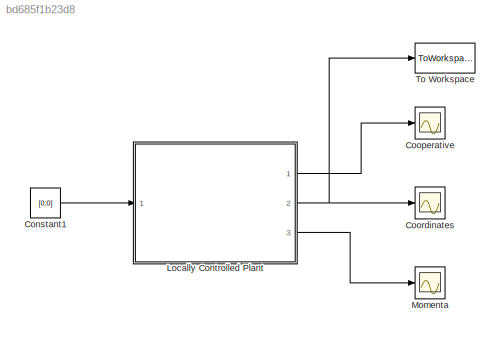
MODEL slx_bd685f1b23d8
KIND model
CONFIG AbsTol = auto
CONFIG EnableMultiTasking = off
CONFIG FixedStep = auto
CONFIG MaxStep = auto
CONFIG MinStep = auto
CONFIG RelTol = 1e-3
CONFIG SampleTimeConstraint = Unconstrained
CONFIG Solver = VariableStepAuto
CONFIG SolverName = VariableStepAuto
CONFIG StartTime = 0.0
CONFIG StopTime = 10.0
BLOCK [Constant] Constant1
  Value = [0;0]
BLOCK [Scope] Cooperative
  NumInputPorts = 1
  Ports = [1]
  ScopeSpecificationString = Simulink.scopes.TimeScopeBlockCfg('CurrentConfiguration', extmgr.ConfigurationSet(extmgr.Configuration('Core','General UI',true),extmgr.Configuration('Core','Source UI',true),extmgr.Configuration('Sources','WiredSimulink',true,'DataLoggingVariableName','ScopeData1'),extmgr.Configuration('Visuals','Time Domain',true,'SerializedDisplays',{struct('MinYLimReal','2.7501','MaxYLimReal','5.24999','YLabel...<+1379ch>
BLOCK [Scope] Coordinates
  NumInputPorts = 1
  Ports = [1]
  ScopeSpecificationString = Simulink.scopes.TimeScopeBlockCfg('CurrentConfiguration', extmgr.ConfigurationSet(extmgr.Configuration('Core','General UI',true),extmgr.Configuration('Core','Source UI',true),extmgr.Configuration('Sources','WiredSimulink',true),extmgr.Configuration('Visuals','Time Domain',true,'SerializedDisplays',{struct('MinYLimReal','-2.22982','MaxYLimReal','5.80331','YLabelReal','','MinYLimMag','0.00000','MaxY...<+1405ch>
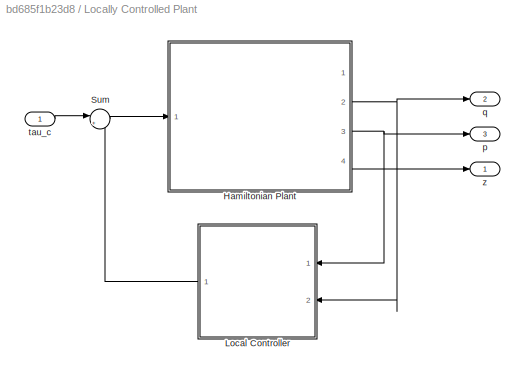
BLOCK [SubSystem] Locally Controlled Plant
  Ports = [1, 3]
  RequestExecContextInheritance = off
  Variant = off
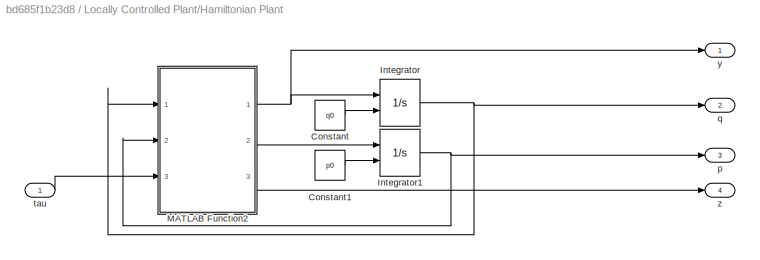
BLOCK [SubSystem] Locally Controlled Plant/Hamiltonian Plant
  Ports = [1, 4]
  RequestExecContextInheritance = off
  Variant = off
BLOCK [Constant] Locally Controlled Plant/Hamiltonian Plant/Constant
  Value = q0
BLOCK [Constant] Locally Controlled Plant/Hamiltonian Plant/Constant1
  Value = p0
BLOCK [Integrator] Locally Controlled Plant/Hamiltonian Plant/Integrator
  InitialCondition = q01
  InitialConditionSource = external
  Ports = [2, 1]
BLOCK [Integrator] Locally Controlled Plant/Hamiltonian Plant/Integrator1
  InitialCondition = p02
  InitialConditionSource = external
  Ports = [2, 1]
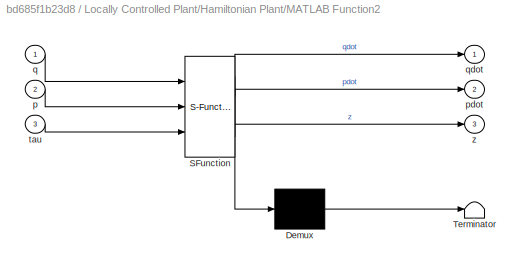
BLOCK [SubSystem] Locally Controlled Plant/Hamiltonian Plant/MATLAB Function2
  ErrorFcn = Stateflow.Translate.translate
  PermitHierarchicalResolution = ExplicitOnly
  Ports = [3, 3]
  RequestExecContextInheritance = off
  SFBlockType = MATLAB Function
  TreatAsAtomicUnit = on
  Variant = off
BLOCK [Demux] Locally Controlled Plant/Hamiltonian Plant/MATLAB Function2/ Demux 
  Outputs = 1
  Ports = [1, 1]
BLOCK [S-Function] Locally Controlled Plant/Hamiltonian Plant/MATLAB Function2/ SFunction 
  EnableBusSupport = on
  FunctionName = sf_sfun
  PortCounts = [3 4]
  Ports = [3, 4]
  SFcnIsStateOwnerBlock = off
  SFunctionDeploymentMode = off
  Tag = Stateflow S-Function Model 3
BLOCK [Terminator] Locally Controlled Plant/Hamiltonian Plant/MATLAB Function2/ Terminator 
BLOCK [Inport] Locally Controlled Plant/Hamiltonian Plant/MATLAB Function2/p
  IconDisplay = Port number
  Port = 2
BLOCK [Outport] Locally Controlled Plant/Hamiltonian Plant/MATLAB Function2/pdot
  IconDisplay = Port number
  Port = 2
BLOCK [Inport] Locally Controlled Plant/Hamiltonian Plant/MATLAB Function2/q
  IconDisplay = Port number
BLOCK [Outport] Locally Controlled Plant/Hamiltonian Plant/MATLAB Function2/qdot
  IconDisplay = Port number
BLOCK [Inport] Locally Controlled Plant/Hamiltonian Plant/MATLAB Function2/tau
  IconDisplay = Port number
  Port = 3
BLOCK [Outport] Locally Controlled Plant/Hamiltonian Plant/MATLAB Function2/z
  IconDisplay = Port number
  Port = 3
BLOCK [Outport] Locally Controlled Plant/Hamiltonian Plant/p
  IconDisplay = Port number
  Port = 3
BLOCK [Outport] Locally Controlled Plant/Hamiltonian Plant/q
  IconDisplay = Port number
  Port = 2
BLOCK [Inport] Locally Controlled Plant/Hamiltonian Plant/tau
  IconDisplay = Port number
BLOCK [Outport] Locally Controlled Plant/Hamiltonian Plant/y
  IconDisplay = Port number
BLOCK [Outport] Locally Controlled Plant/Hamiltonian Plant/z
  IconDisplay = Port number
  Port = 4
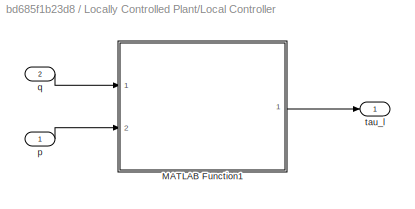
BLOCK [SubSystem] Locally Controlled Plant/Local Controller
  Ports = [2, 1]
  RequestExecContextInheritance = off
  Variant = off
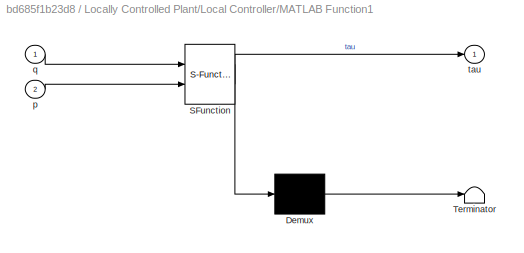
BLOCK [SubSystem] Locally Controlled Plant/Local Controller/MATLAB Function1
  ErrorFcn = Stateflow.Translate.translate
  PermitHierarchicalResolution = ExplicitOnly
  Ports = [2, 1]
  RequestExecContextInheritance = off
  SFBlockType = MATLAB Function
  TreatAsAtomicUnit = on
  Variant = off
BLOCK [Demux] Locally Controlled Plant/Local Controller/MATLAB Function1/ Demux 
  Outputs = 1
  Ports = [1, 1]
BLOCK [S-Function] Locally Controlled Plant/Local Controller/MATLAB Function1/ SFunction 
  EnableBusSupport = on
  FunctionName = sf_sfun
  PortCounts = [2 2]
  Ports = [2, 2]
  SFcnIsStateOwnerBlock = off
  SFunctionDeploymentMode = off
  Tag = Stateflow S-Function Model 4
BLOCK [Terminator] Locally Controlled Plant/Local Controller/MATLAB Function1/ Terminator 
BLOCK [Inport] Locally Controlled Plant/Local Controller/MATLAB Function1/p
  IconDisplay = Port number
  Port = 2
BLOCK [Inport] Locally Controlled Plant/Local Controller/MATLAB Function1/q
  IconDisplay = Port number
BLOCK [Outport] Locally Controlled Plant/Local Controller/MATLAB Function1/tau
  IconDisplay = Port number
BLOCK [Inport] Locally Controlled Plant/Local Controller/p
  IconDisplay = Port number
BLOCK [Inport] Locally Controlled Plant/Local Controller/q
  IconDisplay = Port number
  Port = 2
BLOCK [Outport] Locally Controlled Plant/Local Controller/tau_l
  IconDisplay = Port number
BLOCK [Sum] Locally Controlled Plant/Sum
  IconShape = round
  InputSameDT = off
  Inputs = |++
  OutDataTypeStr = Inherit: Inherit via internal rule
  Ports = [2, 1]
  SaturateOnIntegerOverflow = off
BLOCK [Outport] Locally Controlled Plant/p
  IconDisplay = Port number
  Port = 3
BLOCK [Outport] Locally Controlled Plant/q
  IconDisplay = Port number
  Port = 2
BLOCK [Inport] Locally Controlled Plant/tau_c
  IconDisplay = Port number
BLOCK [Outport] Locally Controlled Plant/z
  IconDisplay = Port number
BLOCK [Scope] Momenta
  NumInputPorts = 1
  Ports = [1]
  ScopeSpecificationString = Simulink.scopes.TimeScopeBlockCfg('CurrentConfiguration', extmgr.ConfigurationSet(extmgr.Configuration('Core','General UI',true),extmgr.Configuration('Core','Source UI',true),extmgr.Configuration('Sources','WiredSimulink',true,'DataLoggingVariableName','ScopeData1'),extmgr.Configuration('Visuals','Time Domain',true,'SerializedDisplays',{struct('MinYLimReal','-4.87607','MaxYLimReal','1.96026','YLab...<+1444ch>
BLOCK [ToWorkspace] To Workspace
  FixptAsFi = on
  MaxDataPoints = inf
  Ports = [1]
  SampleTime = -1
  Save2DSignal = 3-D array (concatenate along third dimension)
  SaveFormat = Timeseries
  VariableName = q
LINE Constant1:1 -> Locally Controlled Plant:1
LINE Locally Controlled Plant/Hamiltonian Plant/Constant1:1 -> Locally Controlled Plant/Hamiltonian Plant/Integrator1:2
LINE Locally Controlled Plant/Hamiltonian Plant/Constant:1 -> Locally Controlled Plant/Hamiltonian Plant/Integrator:2
NET Locally Controlled Plant/Hamiltonian Plant/Integrator1:1 -> Locally Controlled Plant/Hamiltonian Plant/MATLAB Function2:2, Locally Controlled Plant/Hamiltonian Plant/p:1
NET Locally Controlled Plant/Hamiltonian Plant/Integrator:1 -> Locally Controlled Plant/Hamiltonian Plant/MATLAB Function2:1, Locally Controlled Plant/Hamiltonian Plant/q:1
NET Locally Controlled Plant/Hamiltonian Plant/MATLAB Function2:1 -> Locally Controlled Plant/Hamiltonian Plant/Integrator:1, Locally Controlled Plant/Hamiltonian Plant/y:1
LINE Locally Controlled Plant/Hamiltonian Plant/MATLAB Function2:2 -> Locally Controlled Plant/Hamiltonian Plant/Integrator1:1
LINE Locally Controlled Plant/Hamiltonian Plant/MATLAB Function2:3 -> Locally Controlled Plant/Hamiltonian Plant/z:1
LINE Locally Controlled Plant/Hamiltonian Plant/tau:1 -> Locally Controlled Plant/Hamiltonian Plant/MATLAB Function2:3
NET Locally Controlled Plant/Hamiltonian Plant:2 -> Locally Controlled Plant/Local Controller:2, Locally Controlled Plant/q:1
NET Locally Controlled Plant/Hamiltonian Plant:3 -> Locally Controlled Plant/Local Controller:1, Locally Controlled Plant/p:1
LINE Locally Controlled Plant/Hamiltonian Plant:4 -> Locally Controlled Plant/z:1
LINE Locally Controlled Plant/Local Controller/MATLAB Function1:1 -> Locally Controlled Plant/Local Controller/tau_l:1
LINE Locally Controlled Plant/Local Controller/p:1 -> Locally Controlled Plant/Local Controller/MATLAB Function1:2
LINE Locally Controlled Plant/Local Controller/q:1 -> Locally Controlled Plant/Local Controller/MATLAB Function1:1
LINE Locally Controlled Plant/Local Controller:1 -> Locally Controlled Plant/Sum:2
LINE Locally Controlled Plant/Sum:1 -> Locally Controlled Plant/Hamiltonian Plant:1
LINE Locally Controlled Plant/tau_c:1 -> Locally Controlled Plant/Sum:1
LINE Locally Controlled Plant:1 -> Cooperative:1
NET Locally Controlled Plant:2 -> Coordinates:1, To Workspace:1
LINE Locally Controlled Plant:3 -> Momenta:1
note: NET lines group one-source signal fan-out (src -> all destinations, sorted); 1:1 wires keep LINE
CHART Locally Controlled Plant/Hamiltonian Plant/MATLAB Function2 states=1 transitions=1
  STATE_LABEL 'eML_blk_kernel()'
  STATE_LABEL "SCRIPT:\nfunction [qdot, pdot, z] = fcn(q, p, tau)\n\n    coder.extrinsic('M_point_mass');\n    qdot = zeros(2, 1);\n    pdot = zeros(2, 1);\n    z = 0;\n    [qdot, pdot, z] = M_point_mass(q, p, tau);\n"
CHART Locally Controlled Plant/Local Controller/MATLAB Function1 states=1 transitions=1
  STATE_LABEL 'eML_blk_kernel()'
  STATE_LABEL "SCRIPT:\nfunction tau = LocalControl(q, p)\n    \n\ncoder.extrinsic('LC_point_mass');\ntau = zeros(2, 1);\ntau = LC_point_mass(q, p);\n\n"
